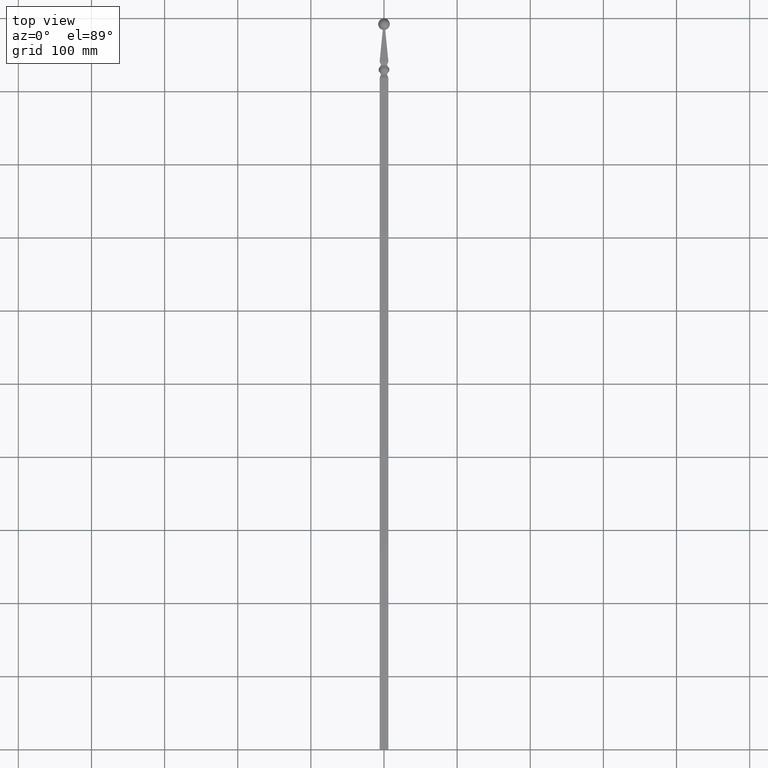
[diagram: clean part render]
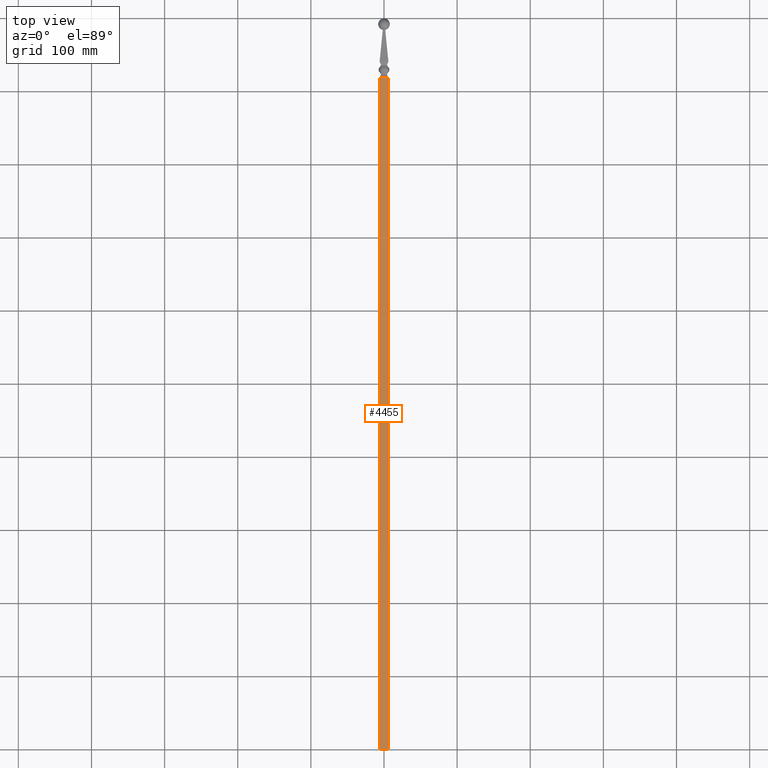
[diagram: same view with one face highlighted and labeled with its STEP entity id]
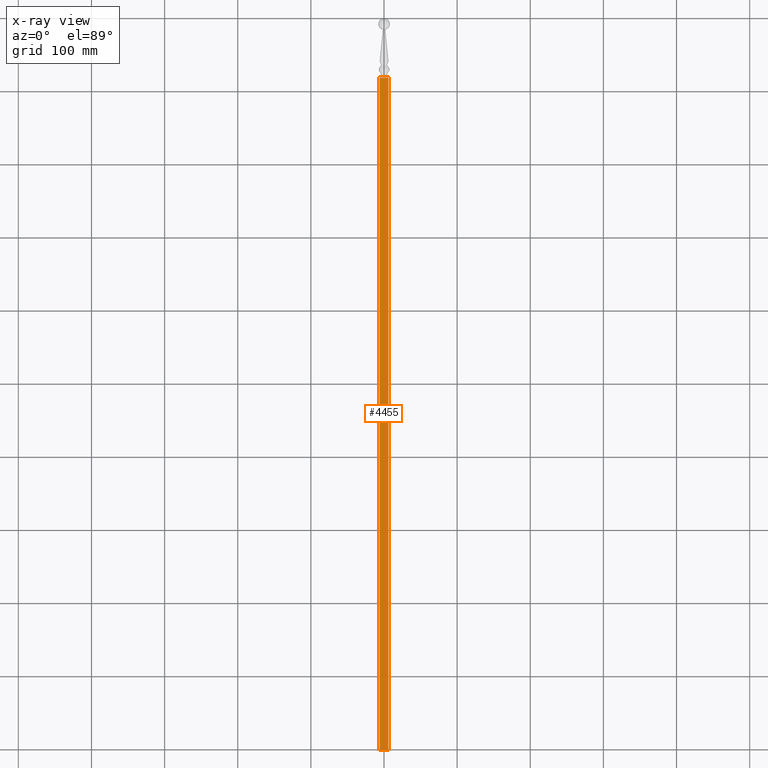
[diagram: x-ray of the same camera — body ghosted, the highlighted face saturated]
A machine part, top view. The second image highlights one B-rep face of the part: STEP entity #4455.
The next image is the same camera in x-ray: the body ghosted, the highlighted face saturated — about 0% of this face is hidden behind the body in this view.
In plain terms, the highlighted planar face has unit normal (0, 0, -1).
Its self-contained STEP definition (entity closure, byte-faithful):
#10 = CARTESIAN_POINT ( 'NONE',  ( -5.999999999997209343, 0.000000000000000000, 5.999999999999999112 ) ) ;
#414 = DIRECTION ( 'NONE',  ( -0.000000000000000000, 1.000000000000000000, -0.000000000000000000 ) ) ;
#474 = PLANE ( 'NONE',  #10589 ) ;
#1087 = EDGE_CURVE ( 'NONE', #3541, #5389, #2598, .T. ) ;
#1436 = VERTEX_POINT ( 'NONE', #10 ) ;
#1535 = DIRECTION ( 'NONE',  ( -1.000000000000000000, 0.000000000000000000, -1.445602896647339163E-16 ) ) ;
#1934 = DIRECTION ( 'NONE',  ( -0.000000000000000000, 1.000000000000000000, -0.000000000000000000 ) ) ;
#2486 = ORIENTED_EDGE ( 'NONE', *, *, #5382, .F. ) ;
#2598 = LINE ( 'NONE', #8986, #6720 ) ;
#2668 = EDGE_LOOP ( 'NONE', ( #2486, #12003, #9326, #3166 ) ) ;
#3017 = DIRECTION ( 'NONE',  ( -1.000000000000000000, -0.000000000000000000, -1.445602896647339163E-16 ) ) ;
#3166 = ORIENTED_EDGE ( 'NONE', *, *, #12206, .F. ) ;
#3541 = VERTEX_POINT ( 'NONE', #12304 ) ;
#4445 = CARTESIAN_POINT ( 'NONE',  ( -5.999999999997209343, 918.5000000000000000, 5.999999999999999112 ) ) ;
#4455 = ADVANCED_FACE ( 'NONE', ( #7838 ), #474, .F. ) ;
#5375 = DIRECTION ( 'NONE',  ( -1.000000000000000000, -9.780885648240125358E-18, -1.445602896647339163E-16 ) ) ;
#5382 = EDGE_CURVE ( 'NONE', #3541, #1436, #6170, .T. ) ;
#5389 = VERTEX_POINT ( 'NONE', #12747 ) ;
#6170 = LINE ( 'NONE', #10722, #10103 ) ;
#6197 = CARTESIAN_POINT ( 'NONE',  ( -5.999999999997209343, 918.5000000000000000, 5.999999999999999112 ) ) ;
#6720 = VECTOR ( 'NONE', #414, 1000.000000000000000 ) ;
#7838 = FACE_OUTER_BOUND ( 'NONE', #2668, .T. ) ;
#8986 = CARTESIAN_POINT ( 'NONE',  ( 6.000000000002792433, -16.97056274847707869, 6.000000000000000888 ) ) ;
#9212 = CARTESIAN_POINT ( 'NONE',  ( -5.999999999997209343, -16.97056274847707869, 5.999999999999999112 ) ) ;
#9326 = ORIENTED_EDGE ( 'NONE', *, *, #10191, .T. ) ;
#9798 = VECTOR ( 'NONE', #3017, 1000.000000000000000 ) ;
#10087 = CARTESIAN_POINT ( 'NONE',  ( 6.000000000002792433, -16.97056274847707869, 6.000000000000000888 ) ) ;
#10103 = VECTOR ( 'NONE', #5375, 1000.000000000000000 ) ;
#10134 = DIRECTION ( 'NONE',  ( 1.445602896647339163E-16, 0.000000000000000000, -1.000000000000000000 ) ) ;
#10191 = EDGE_CURVE ( 'NONE', #5389, #12349, #12613, .T. ) ;
#10273 = LINE ( 'NONE', #9212, #13249 ) ;
#10589 = AXIS2_PLACEMENT_3D ( 'NONE', #10087, #10134, #1535 ) ;
#10722 = CARTESIAN_POINT ( 'NONE',  ( 6.000000000002792433, 0.000000000000000000, 6.000000000000000888 ) ) ;
#12003 = ORIENTED_EDGE ( 'NONE', *, *, #1087, .T. ) ;
#12206 = EDGE_CURVE ( 'NONE', #1436, #12349, #10273, .T. ) ;
#12304 = CARTESIAN_POINT ( 'NONE',  ( 6.000000000002792433, 0.000000000000000000, 6.000000000000000888 ) ) ;
#12349 = VERTEX_POINT ( 'NONE', #4445 ) ;
#12613 = LINE ( 'NONE', #6197, #9798 ) ;
#12747 = CARTESIAN_POINT ( 'NONE',  ( 6.000000000002792433, 918.5000000000000000, 6.000000000000000888 ) ) ;
#13249 = VECTOR ( 'NONE', #1934, 1000.000000000000000 ) ;